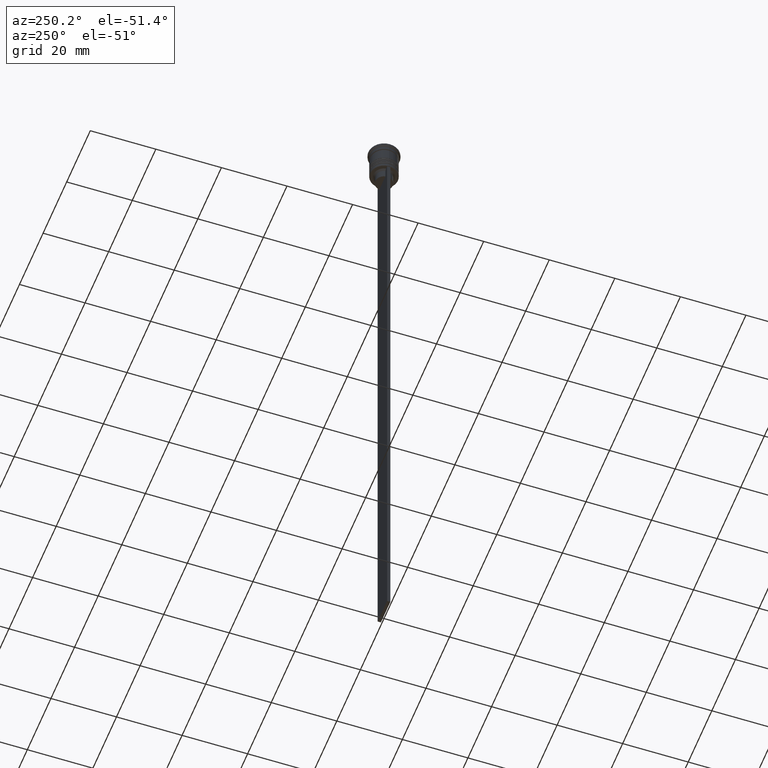
[diagram: clean part render]
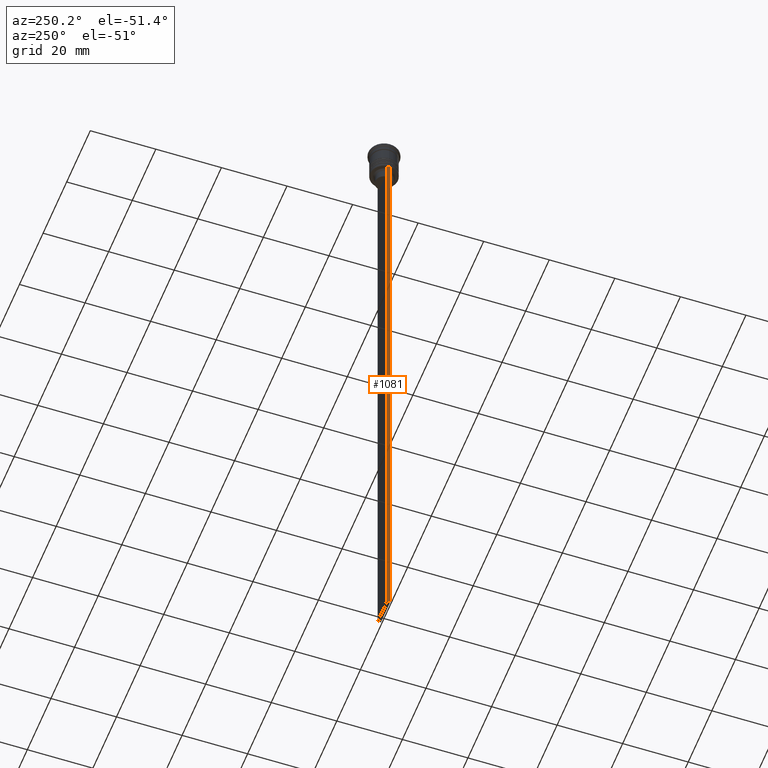
[diagram: same view with one face highlighted and labeled with its STEP entity id]
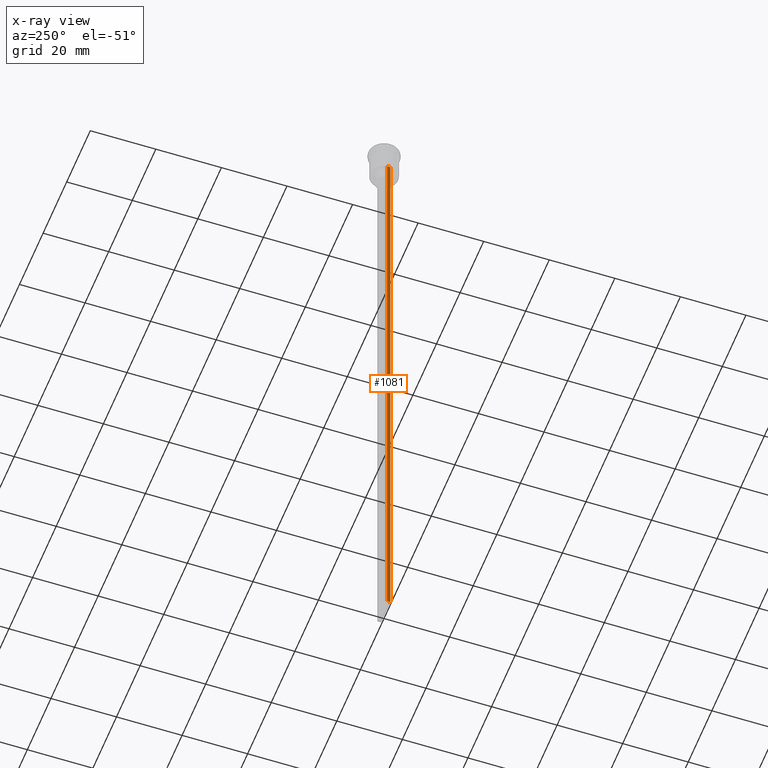
[diagram: x-ray of the same camera — body ghosted, the highlighted face saturated]
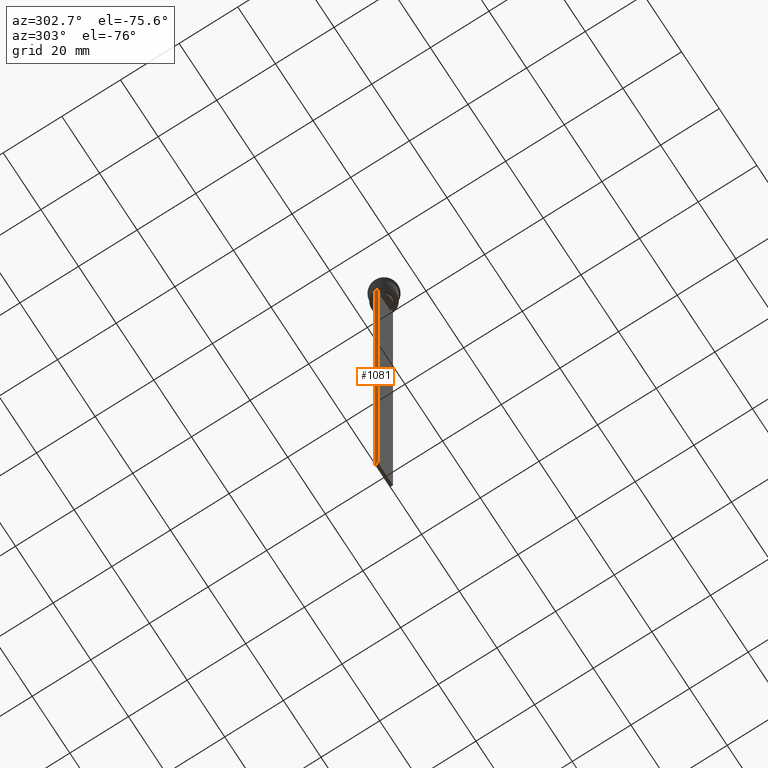
[diagram: same view with one face highlighted and labeled with its STEP entity id]
A machine part, auxiliary view. The second image highlights one B-rep face of the part: STEP entity #1081.
The next image is the same camera in x-ray: the body ghosted, the highlighted face saturated — about 0% of this face is hidden behind the body in this view.
A second angle (auxiliary view) of the same face is appended — the face is thin or edge-on in the first view.
In plain terms, the highlighted planar face has unit normal (-1, 0, 0).
Its self-contained STEP definition (entity closure, byte-faithful):
#39 = VERTEX_POINT ( 'NONE', #2355 ) ;
#56 = ORIENTED_EDGE ( 'NONE', *, *, #403, .F. ) ;
#66 = LINE ( 'NONE', #630, #1534 ) ;
#95 = VECTOR ( 'NONE', #120, 1000.000000000000000 ) ;
#120 = DIRECTION ( 'NONE',  ( 0.000000000000000000, 0.000000000000000000, -1.000000000000000000 ) ) ;
#154 = DIRECTION ( 'NONE',  ( 0.000000000000000000, 0.000000000000000000, -1.000000000000000000 ) ) ;
#175 = FACE_OUTER_BOUND ( 'NONE', #2057, .T. ) ;
#177 = CARTESIAN_POINT ( 'NONE',  ( -3.999999999999994671, 0.4999999999999995559, -1.437742251701450202 ) ) ;
#403 = EDGE_CURVE ( 'NONE', #2373, #39, #66, .T. ) ;
#473 = LINE ( 'NONE', #1755, #1229 ) ;
#489 = LINE ( 'NONE', #2140, #95 ) ;
#630 = CARTESIAN_POINT ( 'NONE',  ( -3.999999999999994671, -0.5000000000000004441, -9.500000000000000000 ) ) ;
#715 = PLANE ( 'NONE',  #842 ) ;
#724 = DIRECTION ( 'NONE',  ( 0.000000000000000000, 0.000000000000000000, 1.000000000000000000 ) ) ;
#842 = AXIS2_PLACEMENT_3D ( 'NONE', #2201, #2027, #724 ) ;
#914 = ORIENTED_EDGE ( 'NONE', *, *, #2042, .T. ) ;
#979 = EDGE_CURVE ( 'NONE', #1869, #2304, #473, .T. ) ;
#1081 = ADVANCED_FACE ( 'NONE', ( #175 ), #715, .T. ) ;
#1151 = CARTESIAN_POINT ( 'NONE',  ( -3.999999999999994671, -0.5000000000000004441, -209.5000000000000284 ) ) ;
#1173 = CARTESIAN_POINT ( 'NONE',  ( -3.999999999999994671, 0.4999999999999997780, -9.500000000000000000 ) ) ;
#1229 = VECTOR ( 'NONE', #1766, 1000.000000000000000 ) ;
#1431 = LINE ( 'NONE', #177, #2284 ) ;
#1440 = EDGE_CURVE ( 'NONE', #39, #1869, #489, .T. ) ;
#1534 = VECTOR ( 'NONE', #1721, 1000.000000000000000 ) ;
#1721 = DIRECTION ( 'NONE',  ( 0.000000000000000000, -1.000000000000000000, 0.000000000000000000 ) ) ;
#1744 = CARTESIAN_POINT ( 'NONE',  ( -3.999999999999994671, 0.4999999999999995559, -209.5000000000000284 ) ) ;
#1755 = CARTESIAN_POINT ( 'NONE',  ( -3.999999999999994671, -0.5000000000000004441, -209.5000000000000284 ) ) ;
#1766 = DIRECTION ( 'NONE',  ( 0.000000000000000000, 1.000000000000000000, 0.000000000000000000 ) ) ;
#1869 = VERTEX_POINT ( 'NONE', #1151 ) ;
#1923 = ORIENTED_EDGE ( 'NONE', *, *, #979, .F. ) ;
#2027 = DIRECTION ( 'NONE',  ( -1.000000000000000000, 0.000000000000000000, 0.000000000000000000 ) ) ;
#2042 = EDGE_CURVE ( 'NONE', #2373, #2304, #1431, .T. ) ;
#2057 = EDGE_LOOP ( 'NONE', ( #56, #914, #1923, #2199 ) ) ;
#2140 = CARTESIAN_POINT ( 'NONE',  ( -3.999999999999994671, -0.5000000000000004441, -1.437742251701450202 ) ) ;
#2199 = ORIENTED_EDGE ( 'NONE', *, *, #1440, .F. ) ;
#2201 = CARTESIAN_POINT ( 'NONE',  ( -3.999999999999994671, -0.5000000000000004441, -1.437742251701450202 ) ) ;
#2284 = VECTOR ( 'NONE', #154, 1000.000000000000000 ) ;
#2304 = VERTEX_POINT ( 'NONE', #1744 ) ;
#2355 = CARTESIAN_POINT ( 'NONE',  ( -3.999999999999994671, -0.5000000000000004441, -9.500000000000000000 ) ) ;
#2373 = VERTEX_POINT ( 'NONE', #1173 ) ;